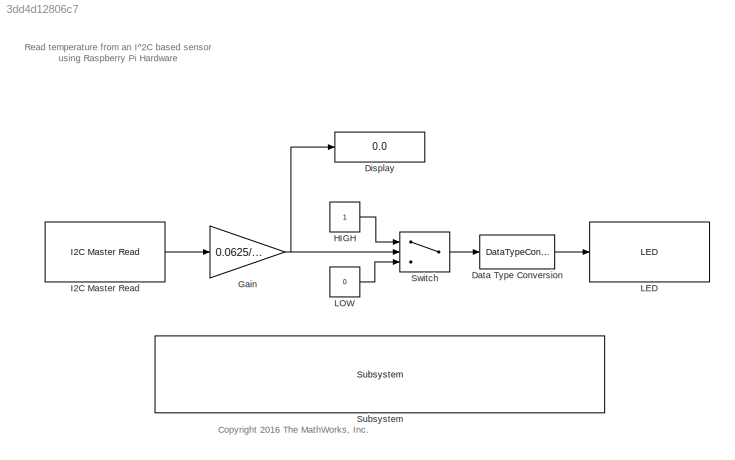
MODEL slx_3dd4d12806c7
KIND model
CONFIG AbsTol = auto
CONFIG EnableMultiTasking = off
CONFIG FixedStep = auto
CONFIG MaxStep = auto
CONFIG MinStep = auto
CONFIG RelTol = 1e-3
CONFIG SampleTimeConstraint = Unconstrained
CONFIG Solver = FixedStepAuto
CONFIG SolverName = FixedStepAuto
CONFIG StartTime = 0.0
CONFIG StopTime = inf
BLOCK [DataTypeConversion] Data Type Conversion
  OutDataTypeStr = boolean
  RndMeth = Floor
  SaturateOnIntegerOverflow = off
BLOCK [Display] Display
  Decimation = 1
  Ports = [1]
BLOCK [Gain] Gain
  Gain = 0.0625/16
  OutDataTypeStr = single
  ParamDataTypeStr = Inherit: Inherit via internal rule
  SaturateOnIntegerOverflow = off
BLOCK [Constant] HIGH
  OutDataTypeStr = uint8
BLOCK [Reference] I2C Master Read  REF=raspberrypilib/I2C Master Read
  Ports = [0, 1]
  SourceBlock = raspberrypilib/I2C Master Read
  SourceProductBaseCode = RASPPI
  SourceProductName = Simulink Support Package for Raspberry Pi Hardware
  SourceType = codertarget.raspi.internal.I2CMasterRead
BLOCK [Reference] LED  REF=embdlinuxlib/LED
  Ports = [1]
  SourceBlock = embdlinuxlib/LED
  SourceProductBaseCode = RASPPI
  SourceProductName = Simulink Support Package for Raspberry Pi Hardware
  SourceType = LED Write
BLOCK [Constant] LOW
  OutDataTypeStr = uint8
  Value = 0
BLOCK [Reference] Subsystem  REF=realtime_examples_misc/Subsystem
  Ports = []
  SourceBlock = realtime_examples_misc/Subsystem
BLOCK [Switch] Switch
  Criteria = u2 > Threshold
  InputSameDT = off
  SaturateOnIntegerOverflow = off
  Threshold = 27
ANNOTATION (root): <copyright redacted>
ANNOTATION (root): Read temperature from an I^2C based sensor using Raspberry Pi Hardware
LINE Data Type Conversion:1 -> LED:1
NET Gain:1 -> Display:1, Switch:2
LINE HIGH:1 -> Switch:1
LINE I2C Master Read:1 -> Gain:1
LINE LOW:1 -> Switch:3
LINE Switch:1 -> Data Type Conversion:1
note: NET lines group one-source signal fan-out (src -> all destinations, sorted); 1:1 wires keep LINE
